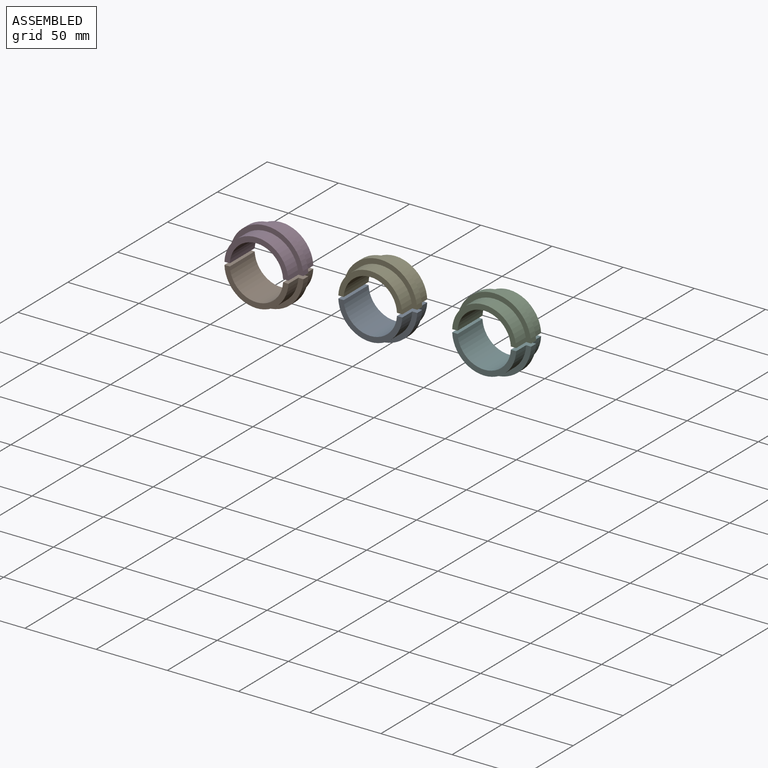
[diagram: assembled view]
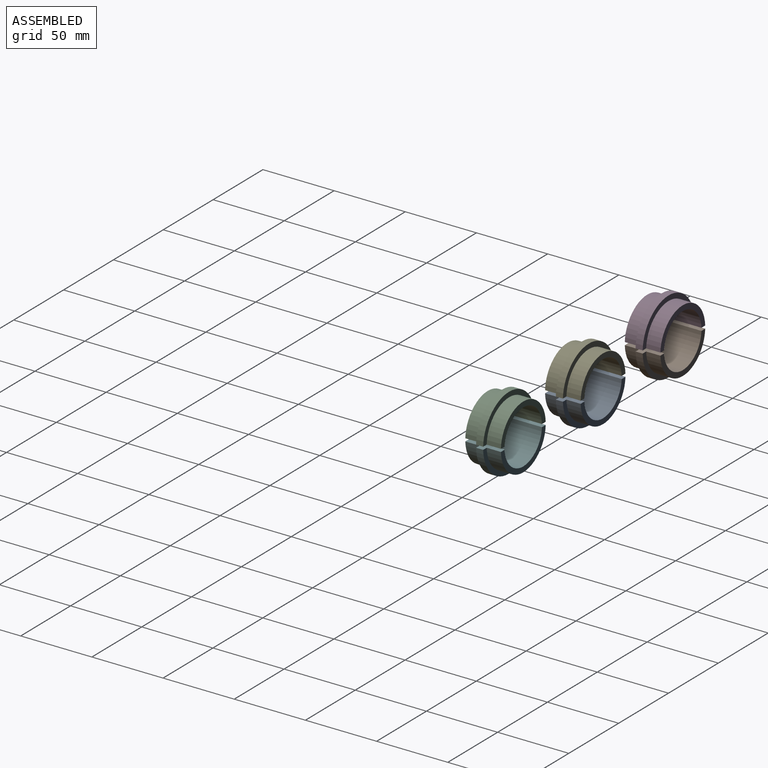
[diagram: assembled view, second angle]
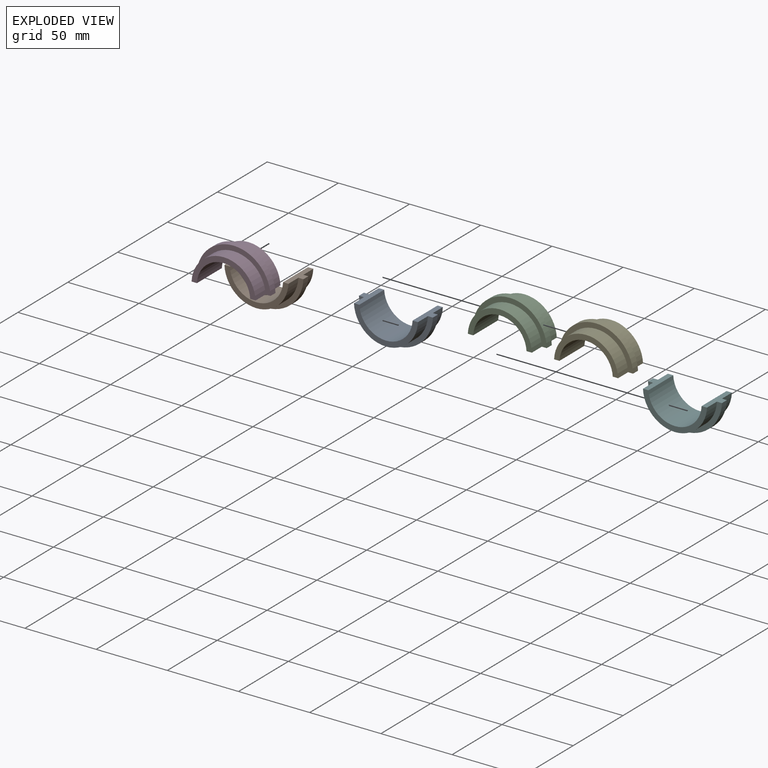
[diagram: exploded view]
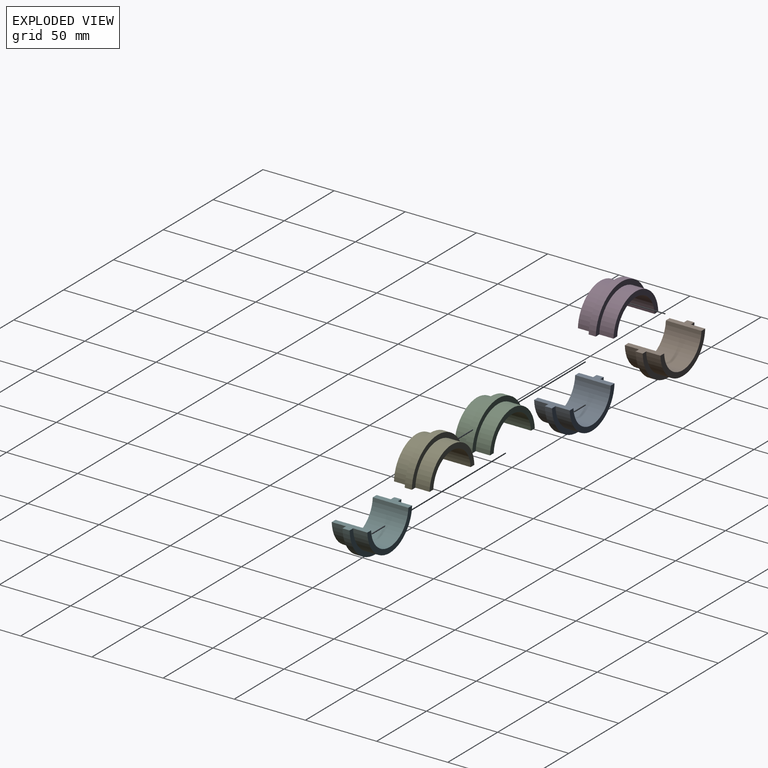
[diagram: exploded view, second angle]
ASSEMBLY  parts=6 mates=2
PART A: 10 faces, bbox 52x25x25 mm
  f0: plane 51.96x25mm, normal (0,0,1), area 259.6mm2, adj f1,f7,f8,f9
  f1: cylinder r=26mm len=51.96mm, axis (0,0,-1), area 398.4mm2, adj f0,f2,f8,f9
  f2: plane 51.96x25mm, normal (0,0,-1), area 259.6mm2, adj f1,f3,f8,f9
  f3: cylinder r=22.5mm len=44.96mm, axis (0,0,-1), area 686.9mm2, adj f2,f4,f8,f9
  f4: plane 44.96x21.5mm, normal (0,0,-1), area 235.5mm2, adj f3,f5,f8,f9
  f5: cylinder r=18.75mm len=37.45mm, axis (0,0,-1), area 1422.6mm2, adj f4,f6,f8,f9
  f6: plane 44.96x21.5mm, normal (0,0,1), area 235.5mm2, adj f5,f7,f8,f9
  f7: cylinder r=22.5mm len=44.96mm, axis (0,0,-1), area 686.9mm2, adj f0,f6,f8,f9
  f8: plane 25x7.26mm, normal (0,1,0), area 111.4mm2, adj f0,f1,f2,f3,f4,f5,f6,f7
  f9: plane 25x7.26mm, normal (0,1,0), area 111.4mm2, adj f0,f1,f2,f3,f4,f5,f6,f7
PART B: same geometry as A
PART C: same geometry as A
PART D: same geometry as A
PART E: same geometry as A
PART F: same geometry as A
PLACE A rot(axis=(1,0,0),90deg) t=(80,-12.5,0)mm
PLACE B rot(axis=(1,0,0),90deg) t=(0,-12.5,0)mm
PLACE C rot(axis=(0,-0.71,0.71),180deg) t=(160,-12.5,0)mm
PLACE D rot(axis=(0,-0.71,0.71),180deg) t=(0,-12.5,0)mm
PLACE E rot(axis=(0,-0.71,0.71),180deg) t=(80,-12.5,0)mm
PLACE F rot(axis=(1,0,0),90deg) t=(160,-12.5,0)mm
MATE parallel B.f6 <-> D.f6  axis (0,-1,0) through (0,-25,-13.57)mm
MATE parallel D.f9 <-> B.f8  axis (0,0,-1) through (21.17,-12.5,1)mm
